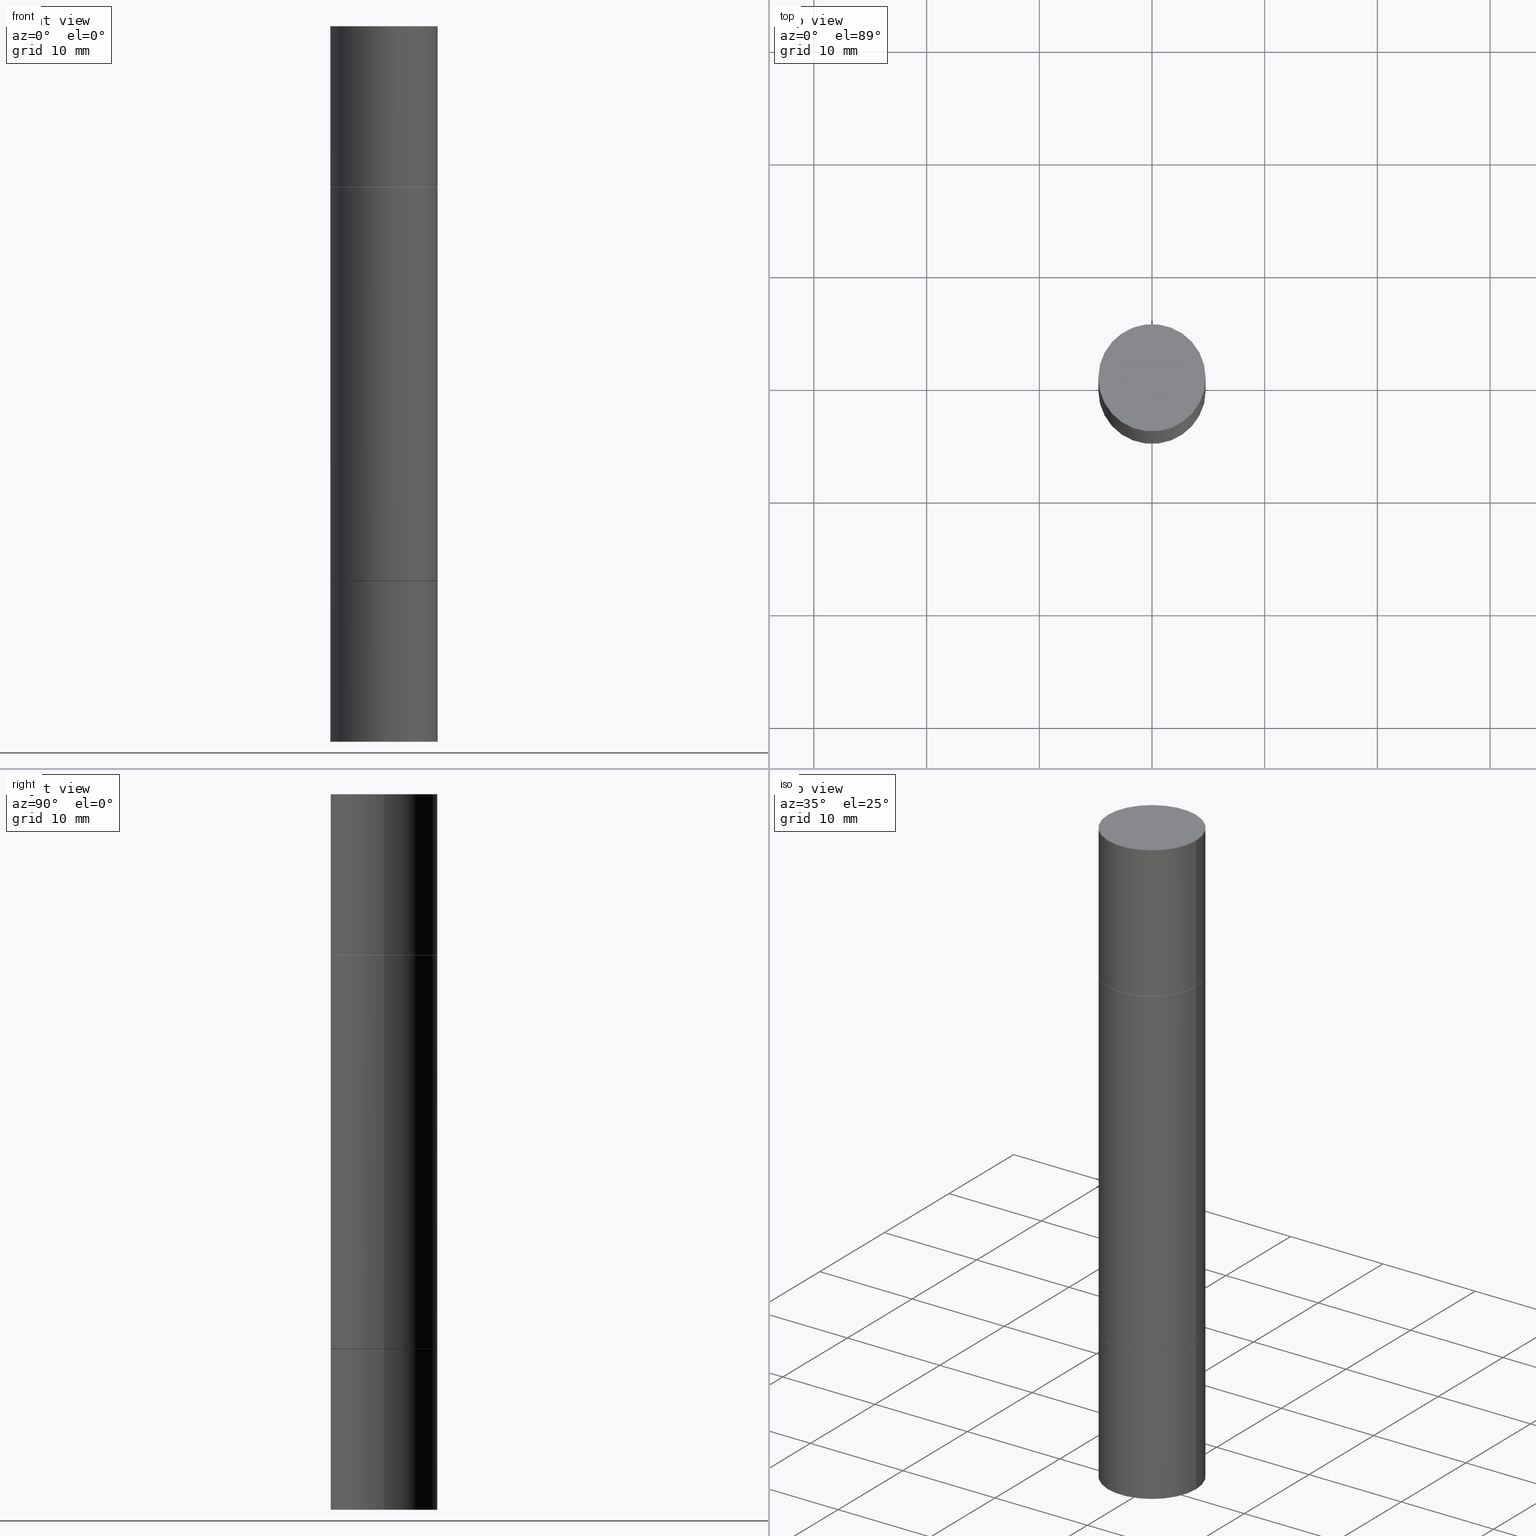
[diagram: canonical four-view strip — front | top / right | iso, engineering-drawing reading convention]
A machine part, canonical four-view strip (front | top / right | iso — engineering-drawing reading convention). The complete STEP part file that produces these views, byte-faithful:
ISO-10303-21;
HEADER;
FILE_DESCRIPTION (( 'STEP AP203' ),
    '1' );
FILE_NAME ('31187.STEP',
    '2024-03-04T15:41:26',
    ( '' ),
    ( '' ),
    'SwSTEP 2.0',
    'SolidWorks 2023',
    '' );
FILE_SCHEMA (( 'CONFIG_CONTROL_DESIGN' ));
ENDSEC;

DATA;
#1 = EDGE_LOOP ( 'NONE', ( #151, #476, #331, #534 ) ) ;
#2 = FACE_OUTER_BOUND ( 'NONE', #395, .T. ) ;
#3 = EDGE_LOOP ( 'NONE', ( #573, #161 ) ) ;
#4 = EDGE_CURVE ( 'NONE', #30, #220, #29, .T. ) ;
#5 = CARTESIAN_POINT ( 'NONE',  ( 0.1875000000000000278, -3.274041462884052574E-15, -0.5629999999999997229 ) ) ;
#6 = CIRCLE ( 'NONE', #514, 0.1875000000000000278 ) ;
#7 = DIRECTION ( 'NONE',  ( -2.445468806185136597E-29, -3.492890411551752677E-15, -1.000000000000000000 ) ) ;
#8 = EDGE_LOOP ( 'NONE', ( #203, #628, #154, #60 ) ) ;
#9 = ORIENTED_EDGE ( 'NONE', *, *, #58, .T. ) ;
#10 = DIRECTION ( 'NONE',  ( -2.445468806185136597E-29, 3.491481338843145583E-15, 1.000000000000000000 ) ) ;
#11 = ADVANCED_FACE ( 'NONE', ( #219 ), #647, .T. ) ;
#12 = ADVANCED_FACE ( 'NONE', ( #600 ), #73, .T. ) ;
#13 = ORIENTED_EDGE ( 'NONE', *, *, #96, .T. ) ;
#14 = LINE ( 'NONE', #112, #566 ) ;
#15 = VECTOR ( 'NONE', #200, 39.37007874015748143 ) ;
#16 = VERTEX_POINT ( 'NONE', #186 ) ;
#17 = AXIS2_PLACEMENT_3D ( 'NONE', #580, #583, #524 ) ;
#18 = FACE_OUTER_BOUND ( 'NONE', #418, .T. ) ;
#19 = DIRECTION ( 'NONE',  ( -2.445468806185136597E-29, 3.491481338843145583E-15, 1.000000000000000000 ) ) ;
#20 = ORIENTED_EDGE ( 'NONE', *, *, #149, .T. ) ;
#21 = CARTESIAN_POINT ( 'NONE',  ( 4.739318546386794397E-29, -6.766490834678016045E-15, -1.937999999999999945 ) ) ;
#22 = CC_DESIGN_DATE_AND_TIME_ASSIGNMENT ( #139, #339, ( #676 ) ) ;
#23 = FACE_OUTER_BOUND ( 'NONE', #480, .T. ) ;
#24 = ORIENTED_EDGE ( 'NONE', *, *, #539, .T. ) ;
#25 = DIRECTION ( 'NONE',  ( -1.000000000000000000, 6.982962677686265922E-15, -9.839502134516470631E-33 ) ) ;
#26 = DATE_AND_TIME ( #562, #388 ) ;
#27 = CARTESIAN_POINT ( 'NONE',  ( 0.1875000000000000278, -3.270548572472500038E-15, -0.5619999999999996110 ) ) ;
#28 = EDGE_CURVE ( 'NONE', #220, #373, #125, .T. ) ;
#29 = LINE ( 'NONE', #346, #627 ) ;
#30 = VERTEX_POINT ( 'NONE', #665 ) ;
#31 = DIRECTION ( 'NONE',  ( 1.000000000000000000, -6.982962677686266711E-15, 0.000000000000000000 ) ) ;
#32 = AXIS2_PLACEMENT_3D ( 'NONE', #128, #236, #493 ) ;
#33 = LOCAL_TIME ( 10, 41, 26.00000000000000000, #242 ) ;
#34 = CALENDAR_DATE ( 2024, 4, 3 ) ;
#35 = CARTESIAN_POINT ( 'NONE',  ( 6.113672015462842613E-29, 1.761340885760521790E-18, 5.463695987328526437E-16 ) ) ;
#36 = DIRECTION ( 'NONE',  ( -2.445468806185136877E-29, 3.491481338843145188E-15, 1.000000000000000000 ) ) ;
#37 = COORDINATED_UNIVERSAL_TIME_OFFSET ( 5, 0, .BEHIND. ) ;
#38 = DIRECTION ( 'NONE',  ( 1.000000000000000000, -6.982962677686266711E-15, 0.000000000000000000 ) ) ;
#39 = CARTESIAN_POINT ( 'NONE',  ( -0.1875000000000000278, 3.066025098218802702E-16, -0.5619999999999996110 ) ) ;
#40 = ADVANCED_FACE ( 'NONE', ( #23 ), #129, .T. ) ;
#41 = MANIFOLD_SOLID_BREP ( 'Body-Move/Copy2[1]', #343 ) ;
#42 = AXIS2_PLACEMENT_3D ( 'NONE', #274, #401, #608 ) ;
#43 = DIRECTION ( 'NONE',  ( 1.000000000000000000, -6.982962677686266711E-15, 0.000000000000000000 ) ) ;
#44 = AXIS2_PLACEMENT_3D ( 'NONE', #35, #381, #276 ) ;
#45 = LOCAL_TIME ( 10, 41, 26.00000000000000000, #92 ) ;
#46 = DIRECTION ( 'NONE',  ( 1.000000000000000000, -6.982962677686270655E-15, 0.000000000000000000 ) ) ;
#47 = EDGE_CURVE ( 'NONE', #232, #263, #228, .T. ) ;
#48 = DIRECTION ( 'NONE',  ( -2.445468806185136597E-29, -3.492890411551752677E-15, -1.000000000000000000 ) ) ;
#49 = FACE_OUTER_BOUND ( 'NONE', #327, .T. ) ;
#50 = AXIS2_PLACEMENT_3D ( 'NONE', #99, #424, #150 ) ;
#51 = MANIFOLD_SOLID_BREP ( 'Combine1', #172 ) ;
#52 = CYLINDRICAL_SURFACE ( 'NONE', #120, 0.1875000000000000278 ) ;
#53 = AXIS2_PLACEMENT_3D ( 'NONE', #648, #115, #590 ) ;
#54 = VERTEX_POINT ( 'NONE', #559 ) ;
#55 = MANIFOLD_SOLID_BREP ( 'Mirror1[1]', #564 ) ;
#56 = FACE_OUTER_BOUND ( 'NONE', #541, .T. ) ;
#57 = ADVANCED_FACE ( 'NONE', ( #594 ), #237, .T. ) ;
#58 = EDGE_CURVE ( 'NONE', #54, #30, #82, .T. ) ;
#59 = CARTESIAN_POINT ( 'NONE',  ( -0.1874999999999999722, -3.078008298971767937E-15, -1.936999999999999833 ) ) ;
#60 = ORIENTED_EDGE ( 'NONE', *, *, #149, .F. ) ;
#61 = CARTESIAN_POINT ( 'NONE',  ( 1.309305502066222340E-15, 0.1874999999999932554, -1.938000000000000389 ) ) ;
#62 = AXIS2_PLACEMENT_3D ( 'NONE', #504, #429, #175 ) ;
#63 = CARTESIAN_POINT ( 'NONE',  ( 4.736873077580609355E-29, -1.964735960817877172E-15, -0.5629999999999997229 ) ) ;
#64 = EDGE_CURVE ( 'NONE', #103, #114, #133, .T. ) ;
#65 = ORIENTED_EDGE ( 'NONE', *, *, #88, .F. ) ;
#66 = DIRECTION ( 'NONE',  ( -1.000000000000000000, 6.982962677686265922E-15, -9.839502134516470631E-33 ) ) ;
#67 = EDGE_LOOP ( 'NONE', ( #430, #578, #20, #383 ) ) ;
#68 = DIRECTION ( 'NONE',  ( 1.000000000000000000, -6.982962677686269077E-15, 0.000000000000000000 ) ) ;
#69 = ORIENTED_EDGE ( 'NONE', *, *, #398, .F. ) ;
#70 = ORIENTED_EDGE ( 'NONE', *, *, #501, .F. ) ;
#71 = VECTOR ( 'NONE', #377, 39.37007874015748143 ) ;
#72 = DIRECTION ( 'NONE',  ( -2.445468806185136597E-29, -3.492890411551752677E-15, -1.000000000000000000 ) ) ;
#73 = CYLINDRICAL_SURFACE ( 'NONE', #607, 0.1874999999999999167 ) ;
#74 = ORIENTED_EDGE ( 'NONE', *, *, #623, .T. ) ;
#75 = DIRECTION ( 'NONE',  ( 2.445468806185136597E-29, 3.492890411551752677E-15, 1.000000000000000000 ) ) ;
#76 = EDGE_CURVE ( 'NONE', #54, #321, #119, .T. ) ;
#77 = APPROVAL_STATUS ( 'not_yet_approved' ) ;
#78 = DIRECTION ( 'NONE',  ( -2.445468806185136597E-29, -3.492890411551752677E-15, -1.000000000000000000 ) ) ;
#79 = CARTESIAN_POINT ( 'NONE',  ( -0.1875000000000000278, -7.444121313411457895E-15, -2.499999999999999556 ) ) ;
#80 = VERTEX_POINT ( 'NONE', #288 ) ;
#81 = PERSON_AND_ORGANIZATION_ROLE ( 'design_owner' ) ;
#82 = CIRCLE ( 'NONE', #267, 0.1864999999999999714 ) ;
#83 = FACE_OUTER_BOUND ( 'NONE', #211, .T. ) ;
#84 = CARTESIAN_POINT ( 'NONE',  ( 4.739318546386794397E-29, -1.961243070406324635E-15, -0.5619999999999996110 ) ) ;
#85 = CARTESIAN_POINT ( 'NONE',  ( -0.1864999999999999714, -5.441328632485429205E-15, -1.937999999999999945 ) ) ;
#86 =( GEOMETRIC_REPRESENTATION_CONTEXT ( 3 ) GLOBAL_UNCERTAINTY_ASSIGNED_CONTEXT ( ( #387 ) ) GLOBAL_UNIT_ASSIGNED_CONTEXT ( ( #646, #605, #130 ) ) REPRESENTATION_CONTEXT ( 'NONE', 'WORKASPACE' ) );
#87 = CYLINDRICAL_SURFACE ( 'NONE', #144, 0.1874999999999999167 ) ;
#88 = EDGE_CURVE ( 'NONE', #367, #213, #223, .T. ) ;
#89 = DIRECTION ( 'NONE',  ( 2.445468806185136597E-29, 3.492890411551752677E-15, 1.000000000000000000 ) ) ;
#90 = CARTESIAN_POINT ( 'NONE',  ( 0.1875000000000000278, -8.072304855405348046E-15, -1.936999999999999833 ) ) ;
#91 = DIRECTION ( 'NONE',  ( -2.445468806185136597E-29, -3.492890411551752677E-15, -1.000000000000000000 ) ) ;
#92 = COORDINATED_UNIVERSAL_TIME_OFFSET ( 5, 0, .BEHIND. ) ;
#93 = COORDINATED_UNIVERSAL_TIME_OFFSET ( 5, 0, .BEHIND. ) ;
#94 = DIRECTION ( 'NONE',  ( -1.000000000000000000, 6.982962677686265922E-15, -4.876176775795935793E-29 ) ) ;
#95 = PRODUCT ( '31187', '31187', '', ( #561 ) ) ;
#96 = EDGE_CURVE ( 'NONE', #263, #80, #315, .T. ) ;
#97 = CIRCLE ( 'NONE', #669, 0.1864999999999999714 ) ;
#98 = FACE_OUTER_BOUND ( 'NONE', #67, .T. ) ;
#99 = CARTESIAN_POINT ( 'NONE',  ( 6.113672015462842613E-29, -8.728703347107864943E-15, -2.500000000000000000 ) ) ;
#100 = VERTEX_POINT ( 'NONE', #39 ) ;
#101 = PLANE ( 'NONE',  #289 ) ;
#102 = DIRECTION ( 'NONE',  ( 1.000000000000000000, -6.982962677686265922E-15, 0.000000000000000000 ) ) ;
#103 = VERTEX_POINT ( 'NONE', #176 ) ;
#104 = DIRECTION ( 'NONE',  ( 2.445468806185136597E-29, 3.492890411551752677E-15, 1.000000000000000000 ) ) ;
#105 = ORIENTED_EDGE ( 'NONE', *, *, #196, .T. ) ;
#106 = CARTESIAN_POINT ( 'NONE',  ( 1.309305502066222340E-15, 0.1874999999999980294, -0.5620000000000004992 ) ) ;
#107 = ORIENTED_EDGE ( 'NONE', *, *, #333, .T. ) ;
#108 = EDGE_CURVE ( 'NONE', #126, #537, #494, .T. ) ;
#109 = DIRECTION ( 'NONE',  ( -1.000000000000000000, 6.982962677686265922E-15, -4.876176775795935793E-29 ) ) ;
#110 = AXIS2_PLACEMENT_3D ( 'NONE', #626, #577, #255 ) ;
#111 = ORIENTED_EDGE ( 'NONE', *, *, #616, .F. ) ;
#112 = CARTESIAN_POINT ( 'NONE',  ( 0.1874999999999999167, -1.003977019005979665E-14, -2.499999999999999556 ) ) ;
#113 = ORIENTED_EDGE ( 'NONE', *, *, #314, .F. ) ;
#114 = VERTEX_POINT ( 'NONE', #661 ) ;
#115 = DIRECTION ( 'NONE',  ( -2.445468806185136597E-29, 3.491481338843145583E-15, 1.000000000000000000 ) ) ;
#116 = ORIENTED_EDGE ( 'NONE', *, *, #295, .F. ) ;
#117 = ORIENTED_EDGE ( 'NONE', *, *, #435, .T. ) ;
#118 = PLANE ( 'NONE',  #482 ) ;
#119 = LINE ( 'NONE', #556, #363 ) ;
#120 = AXIS2_PLACEMENT_3D ( 'NONE', #294, #198, #467 ) ;
#121 = EDGE_LOOP ( 'NONE', ( #173, #547, #13, #70 ) ) ;
#122 = CARTESIAN_POINT ( 'NONE',  ( 4.739318546386794397E-29, -1.961243070406324635E-15, -0.5619999999999996110 ) ) ;
#123 = EDGE_CURVE ( 'NONE', #225, #412, #505, .T. ) ;
#124 = CARTESIAN_POINT ( 'NONE',  ( -0.1874999999999999167, -7.444121313411459473E-15, -2.499999999999999556 ) ) ;
#125 = LINE ( 'NONE', #326, #434 ) ;
#126 = VERTEX_POINT ( 'NONE', #246 ) ;
#127 = PERSON_AND_ORGANIZATION_ROLE ( 'design_supplier' ) ;
#128 = CARTESIAN_POINT ( 'NONE',  ( 4.736873077580609355E-29, -1.964735960817877172E-15, -0.5629999999999997229 ) ) ;
#129 = PLANE ( 'NONE',  #509 ) ;
#130 =( NAMED_UNIT ( * ) SI_UNIT ( $, .STERADIAN. ) SOLID_ANGLE_UNIT ( ) );
#131 = ADVANCED_FACE ( 'NONE', ( #517 ), #147, .T. ) ;
#132 = DIRECTION ( 'NONE',  ( 1.000000000000000000, -6.982962677686265922E-15, 4.876176775795935793E-29 ) ) ;
#133 = LINE ( 'NONE', #79, #140 ) ;
#134 = ADVANCED_BREP_SHAPE_REPRESENTATION ( '31187', ( #41, #55, #253, #503, #51, #262 ), #86 ) ;
#135 = CONICAL_SURFACE ( 'NONE', #215, 0.1864999999999999714, 0.7853981633974311816 ) ;
#136 = CARTESIAN_POINT ( 'NONE',  ( 0.000000000000000000, -8.730464687993621641E-15, -2.499999999999999556 ) ) ;
#137 = DATE_AND_TIME ( #280, #357 ) ;
#138 = DIRECTION ( 'NONE',  ( -2.445468806185136597E-29, 3.491481338843145583E-15, 1.000000000000000000 ) ) ;
#139 = DATE_AND_TIME ( #34, #545 ) ;
#140 = VECTOR ( 'NONE', #495, 39.37007874015748143 ) ;
#141 = LINE ( 'NONE', #621, #15 ) ;
#142 = EDGE_CURVE ( 'NONE', #114, #443, #462, .T. ) ;
#143 = AXIS2_PLACEMENT_3D ( 'NONE', #156, #310, #574 ) ;
#144 = AXIS2_PLACEMENT_3D ( 'NONE', #483, #218, #451 ) ;
#145 = CC_DESIGN_APPROVAL ( #400, ( #654 ) ) ;
#146 = DIRECTION ( 'NONE',  ( -2.445468806185136597E-29, 3.491481338843145583E-15, 1.000000000000000000 ) ) ;
#147 = PLANE ( 'NONE',  #675 ) ;
#148 = ORIENTED_EDGE ( 'NONE', *, *, #282, .T. ) ;
#149 = EDGE_CURVE ( 'NONE', #181, #525, #141, .T. ) ;
#150 = DIRECTION ( 'NONE',  ( 1.000000000000000000, -6.982962677686266711E-15, 0.000000000000000000 ) ) ;
#151 = ORIENTED_EDGE ( 'NONE', *, *, #28, .F. ) ;
#152 = LINE ( 'NONE', #522, #319 ) ;
#153 = CIRCLE ( 'NONE', #678, 0.1875000000000000278 ) ;
#154 = ORIENTED_EDGE ( 'NONE', *, *, #616, .T. ) ;
#155 = ORIENTED_EDGE ( 'NONE', *, *, #28, .T. ) ;
#156 = CARTESIAN_POINT ( 'NONE',  ( 4.736873077580609355E-29, -1.964735960817877172E-15, -0.5629999999999997229 ) ) ;
#157 = ORIENTED_EDGE ( 'NONE', *, *, #323, .F. ) ;
#158 = ADVANCED_FACE ( 'NONE', ( #49 ), #674, .T. ) ;
#159 = DIRECTION ( 'NONE',  ( 0.000000000000000000, 1.000000000000000000, -2.913971193241881950E-15 ) ) ;
#160 = CLOSED_SHELL ( 'NONE', ( #201, #487, #374, #209 ) ) ;
#161 = ORIENTED_EDGE ( 'NONE', *, *, #314, .T. ) ;
#162 = DIRECTION ( 'NONE',  ( 1.000000000000000000, -6.982962677686266711E-15, 0.000000000000000000 ) ) ;
#163 = VECTOR ( 'NONE', #354, 39.37007874015748143 ) ;
#164 = CIRCLE ( 'NONE', #568, 0.1864999999999999714 ) ;
#165 = EDGE_LOOP ( 'NONE', ( #69, #155, #105, #258 ) ) ;
#166 = CARTESIAN_POINT ( 'NONE',  ( 0.1864999999999999714, -8.068813374066505039E-15, -1.937999999999999945 ) ) ;
#167 = ORIENTED_EDGE ( 'NONE', *, *, #435, .F. ) ;
#168 = ADVANCED_FACE ( 'NONE', ( #671 ), #513, .F. ) ;
#169 = DIRECTION ( 'NONE',  ( -2.445468806185136597E-29, 3.491481338843145583E-15, 1.000000000000000000 ) ) ;
#170 = EDGE_CURVE ( 'NONE', #16, #443, #202, .T. ) ;
#171 = DIRECTION ( 'NONE',  ( -0.7071067811865353603, 2.381258160591140710E-15, -0.7071067811865595631 ) ) ;
#172 = CLOSED_SHELL ( 'NONE', ( #486, #12, #338, #634, #519, #230, #11, #375 ) ) ;
#173 = ORIENTED_EDGE ( 'NONE', *, *, #640, .F. ) ;
#174 = DIRECTION ( 'NONE',  ( 2.438088387897959769E-29, 3.492890411551753071E-15, 1.000000000000000000 ) ) ;
#175 = DIRECTION ( 'NONE',  ( 1.000000000000000000, -6.982962677686265922E-15, 0.000000000000000000 ) ) ;
#176 = CARTESIAN_POINT ( 'NONE',  ( -0.1875000000000000278, 3.066025098218802702E-16, 5.463695987328561936E-16 ) ) ;
#177 = CIRCLE ( 'NONE', #355, 0.1875000000000000278 ) ;
#178 = CIRCLE ( 'NONE', #32, 0.1875000000000000278 ) ;
#179 = EDGE_LOOP ( 'NONE', ( #530, #523, #24, #521 ) ) ;
#180 = CARTESIAN_POINT ( 'NONE',  ( 0.1864999999999999714, -8.068813374066505039E-15, -1.937999999999999945 ) ) ;
#181 = VERTEX_POINT ( 'NONE', #247 ) ;
#182 = DIRECTION ( 'NONE',  ( -0.000000000000000000, -3.492185875197449130E-15, -1.000000000000000000 ) ) ;
#183 = ADVANCED_FACE ( 'NONE', ( #677 ), #101, .F. ) ;
#184 = APPROVAL_DATE_TIME ( #26, #400 ) ;
#185 = CARTESIAN_POINT ( 'NONE',  ( 4.739318546386794397E-29, -1.961243070406324635E-15, -0.5619999999999996110 ) ) ;
#186 = CARTESIAN_POINT ( 'NONE',  ( 0.1875000000000000278, -1.307544161180414563E-15, 5.463695987328526437E-16 ) ) ;
#187 =( LENGTH_UNIT ( ) NAMED_UNIT ( * ) SI_UNIT ( $, .METRE. ) );
#188 = APPROVAL_DATE_TIME ( #667, #579 ) ;
#189 = DIRECTION ( 'NONE',  ( 1.000000000000000000, -6.982962677686269077E-15, 0.000000000000000000 ) ) ;
#190 = ORIENTED_EDGE ( 'NONE', *, *, #243, .T. ) ;
#191 = AXIS2_PLACEMENT_3D ( 'NONE', #136, #91, #46 ) ;
#192 = PERSON_AND_ORGANIZATION ( #447, #670 ) ;
#193 = CARTESIAN_POINT ( 'NONE',  ( 0.1875000000000000278, -8.075796336744191053E-15, -1.937999999999999945 ) ) ;
#194 = SECURITY_CLASSIFICATION_LEVEL ( 'unclassified' ) ;
#195 = CARTESIAN_POINT ( 'NONE',  ( 0.000000000000000000, -8.730464687993621641E-15, -2.499999999999999556 ) ) ;
#196 = EDGE_CURVE ( 'NONE', #373, #638, #417, .T. ) ;
#197 = AXIS2_PLACEMENT_3D ( 'NONE', #293, #283, #449 ) ;
#198 = DIRECTION ( 'NONE',  ( -2.445468806185136597E-29, -3.492890411551752677E-15, -1.000000000000000000 ) ) ;
#199 = AXIS2_PLACEMENT_3D ( 'NONE', #538, #169, #132 ) ;
#200 = DIRECTION ( 'NONE',  ( -2.445468806185136877E-29, -3.492890411551753071E-15, -1.000000000000000000 ) ) ;
#201 = ADVANCED_FACE ( 'NONE', ( #673 ), #572, .T. ) ;
#202 = LINE ( 'NONE', #252, #163 ) ;
#203 = ORIENTED_EDGE ( 'NONE', *, *, #260, .F. ) ;
#204 = VECTOR ( 'NONE', #335, 39.37007874015748854 ) ;
#205 = ORIENTED_EDGE ( 'NONE', *, *, #76, .T. ) ;
#206 = AXIS2_PLACEMENT_3D ( 'NONE', #618, #138, #352 ) ;
#207 = CIRCLE ( 'NONE', #630, 0.1875000000000000278 ) ;
#208 = CARTESIAN_POINT ( 'NONE',  ( 0.1875000000000000278, -1.003800884917403995E-14, -2.500000000000000000 ) ) ;
#209 = ADVANCED_FACE ( 'NONE', ( #98 ), #52, .T. ) ;
#210 = DIRECTION ( 'NONE',  ( 1.000000000000000000, -6.982962677686270655E-15, 0.000000000000000000 ) ) ;
#211 = EDGE_LOOP ( 'NONE', ( #479, #481 ) ) ;
#212 = CYLINDRICAL_SURFACE ( 'NONE', #199, 0.1875000000000000278 ) ;
#213 = VERTEX_POINT ( 'NONE', #193 ) ;
#214 = CARTESIAN_POINT ( 'NONE',  ( 4.739318546386794397E-29, -6.766490834678016045E-15, -1.937999999999999945 ) ) ;
#215 = AXIS2_PLACEMENT_3D ( 'NONE', #603, #78, #68 ) ;
#216 = CC_DESIGN_APPROVAL ( #554, ( #676 ) ) ;
#217 = ORIENTED_EDGE ( 'NONE', *, *, #602, .F. ) ;
#218 = DIRECTION ( 'NONE',  ( -2.445468806185136597E-29, -3.492890411551752677E-15, -1.000000000000000000 ) ) ;
#219 = FACE_OUTER_BOUND ( 'NONE', #179, .T. ) ;
#220 = VERTEX_POINT ( 'NONE', #404 ) ;
#221 = APPROVAL_ROLE ( '' ) ;
#222 = CARTESIAN_POINT ( 'NONE',  ( -0.1875000000000000278, -6.415329461342752645E-15, -1.937999999999999945 ) ) ;
#223 = LINE ( 'NONE', #277, #284 ) ;
#224 = CLOSED_SHELL ( 'NONE', ( #248, #40, #650, #158 ) ) ;
#225 = VERTEX_POINT ( 'NONE', #680 ) ;
#226 = LENGTH_MEASURE_WITH_UNIT ( LENGTH_MEASURE( 0.02539999999999999897 ), #187 );
#227 = DIRECTION ( 'NONE',  ( 1.000000000000000000, -6.982962677686269077E-15, 0.000000000000000000 ) ) ;
#228 = LINE ( 'NONE', #393, #204 ) ;
#229 = AXIS2_PLACEMENT_3D ( 'NONE', #320, #635, #102 ) ;
#230 = ADVANCED_FACE ( 'NONE', ( #241 ), #403, .T. ) ;
#231 = VECTOR ( 'NONE', #348, 39.37007874015748854 ) ;
#232 = VERTEX_POINT ( 'NONE', #615 ) ;
#233 = DIRECTION ( 'NONE',  ( -2.438088387897959769E-29, -3.492890411551753071E-15, -1.000000000000000000 ) ) ;
#234 = CC_DESIGN_SECURITY_CLASSIFICATION ( #654, ( #632 ) ) ;
#235 = PERSON_AND_ORGANIZATION ( #447, #670 ) ;
#236 = DIRECTION ( 'NONE',  ( 2.445468806185136597E-29, 3.492890411551752677E-15, 1.000000000000000000 ) ) ;
#237 = CYLINDRICAL_SURFACE ( 'NONE', #619, 0.1875000000000000278 ) ;
#238 = DIRECTION ( 'NONE',  ( 1.000000000000000000, -6.982962677686266711E-15, 0.000000000000000000 ) ) ;
#239 = CARTESIAN_POINT ( 'NONE',  ( -0.1874999999999999167, -1.878200442603741470E-15, -1.249999999999999778 ) ) ;
#240 = DIRECTION ( 'NONE',  ( 2.438088387897959769E-29, 3.492890411551753071E-15, 1.000000000000000000 ) ) ;
#241 = FACE_OUTER_BOUND ( 'NONE', #1, .T. ) ;
#242 = COORDINATED_UNIVERSAL_TIME_OFFSET ( 5, 0, .BEHIND. ) ;
#243 = EDGE_CURVE ( 'NONE', #225, #367, #609, .T. ) ;
#244 = CC_DESIGN_PERSON_AND_ORGANIZATION_ASSIGNMENT ( #402, #127, ( #632 ) ) ;
#245 = CARTESIAN_POINT ( 'NONE',  ( 4.739318546386794397E-29, -1.961243070406324635E-15, -0.5619999999999996110 ) ) ;
#246 = CARTESIAN_POINT ( 'NONE',  ( -0.1864999999999999714, -5.436030178137207592E-15, -1.937999999999999945 ) ) ;
#247 = CARTESIAN_POINT ( 'NONE',  ( 0.1875000000000000278, -1.307544161180414563E-15, 5.463695987328526437E-16 ) ) ;
#248 = ADVANCED_FACE ( 'NONE', ( #359 ), #563, .T. ) ;
#249 = EDGE_CURVE ( 'NONE', #367, #225, #542, .T. ) ;
#250 = ORIENTED_EDGE ( 'NONE', *, *, #413, .F. ) ;
#251 = AXIS2_PLACEMENT_3D ( 'NONE', #516, #48, #569 ) ;
#252 = CARTESIAN_POINT ( 'NONE',  ( 0.1875000000000000278, -1.003977019005979665E-14, -2.499999999999999556 ) ) ;
#253 = MANIFOLD_SOLID_BREP ( 'Mirror1[3]', #224 ) ;
#254 = ORIENTED_EDGE ( 'NONE', *, *, #295, .T. ) ;
#255 = DIRECTION ( 'NONE',  ( 1.000000000000000000, -6.982962677686265922E-15, 4.876176775795935793E-29 ) ) ;
#256 = EDGE_LOOP ( 'NONE', ( #9, #657 ) ) ;
#257 = FACE_OUTER_BOUND ( 'NONE', #3, .T. ) ;
#258 = ORIENTED_EDGE ( 'NONE', *, *, #368, .F. ) ;
#259 = CONICAL_SURFACE ( 'NONE', #419, 0.1864999999999999714, 0.7853981633974311816 ) ;
#260 = EDGE_CURVE ( 'NONE', #472, #181, #308, .T. ) ;
#261 = CARTESIAN_POINT ( 'NONE',  ( 0.000000000000000000, -8.730464687993621641E-15, -2.499999999999999556 ) ) ;
#262 = AXIS2_PLACEMENT_3D ( 'NONE', #552, #612, #453 ) ;
#263 = VERTEX_POINT ( 'NONE', #370 ) ;
#264 = DIRECTION ( 'NONE',  ( 1.000000000000000000, -6.982962677686266711E-15, 0.000000000000000000 ) ) ;
#265 = ORIENTED_EDGE ( 'NONE', *, *, #526, .T. ) ;
#266 = PLANE ( 'NONE',  #110 ) ;
#267 = AXIS2_PLACEMENT_3D ( 'NONE', #84, #89, #550 ) ;
#268 = ORIENTED_EDGE ( 'NONE', *, *, #515, .T. ) ;
#269 = EDGE_CURVE ( 'NONE', #638, #373, #177, .T. ) ;
#270 = EDGE_LOOP ( 'NONE', ( #305, #431 ) ) ;
#271 = CARTESIAN_POINT ( 'NONE',  ( 0.1864999999999999714, -3.263565609794813629E-15, -0.5619999999999996110 ) ) ;
#272 = AXIS2_PLACEMENT_3D ( 'NONE', #195, #299, #518 ) ;
#273 = CIRCLE ( 'NONE', #441, 0.1874999999999999167 ) ;
#274 = CARTESIAN_POINT ( 'NONE',  ( 4.739318546386794397E-29, -6.766490834678016045E-15, -1.937999999999999945 ) ) ;
#275 = ORIENTED_EDGE ( 'NONE', *, *, #640, .T. ) ;
#276 = DIRECTION ( 'NONE',  ( 1.000000000000000000, -6.982962677686265922E-15, 0.000000000000000000 ) ) ;
#277 = CARTESIAN_POINT ( 'NONE',  ( 0.1875000000000000278, -1.309305502066175008E-15, 9.142831454617381013E-30 ) ) ;
#278 = ORIENTED_EDGE ( 'NONE', *, *, #450, .T. ) ;
#279 = FACE_OUTER_BOUND ( 'NONE', #256, .T. ) ;
#280 = CALENDAR_DATE ( 2024, 4, 3 ) ;
#281 = CARTESIAN_POINT ( 'NONE',  ( 4.739318546386794397E-29, -1.961243070406324635E-15, -0.5619999999999996110 ) ) ;
#282 = EDGE_CURVE ( 'NONE', #80, #465, #14, .T. ) ;
#283 = DIRECTION ( 'NONE',  ( -2.445468806185136597E-29, 3.491481338843145583E-15, 1.000000000000000000 ) ) ;
#284 = VECTOR ( 'NONE', #36, 39.37007874015748143 ) ;
#285 = ORIENTED_EDGE ( 'NONE', *, *, #249, .T. ) ;
#286 = APPLICATION_PROTOCOL_DEFINITION ( 'international standard', 'config_control_design', 1994, #555 ) ;
#287 = DIRECTION ( 'NONE',  ( -2.445468806185136597E-29, 3.491481338843145583E-15, 1.000000000000000000 ) ) ;
#288 = CARTESIAN_POINT ( 'NONE',  ( 0.1875000000000000278, -3.274041462884052574E-15, -0.5629999999999997229 ) ) ;
#289 = AXIS2_PLACEMENT_3D ( 'NONE', #411, #455, #567 ) ;
#290 = AXIS2_PLACEMENT_3D ( 'NONE', #122, #233, #444 ) ;
#291 = DIRECTION ( 'NONE',  ( 0.000000000000000000, 1.000000000000000000, -2.913971193241881950E-15 ) ) ;
#292 = DIRECTION ( 'NONE',  ( 1.000000000000000000, -6.982962677686269077E-15, 0.000000000000000000 ) ) ;
#293 = CARTESIAN_POINT ( 'NONE',  ( 4.739318546386794397E-29, -6.766490834678016045E-15, -1.937999999999999945 ) ) ;
#294 = CARTESIAN_POINT ( 'NONE',  ( 0.000000000000000000, -8.730464687993621641E-15, -2.499999999999999556 ) ) ;
#295 = EDGE_CURVE ( 'NONE', #80, #263, #439, .T. ) ;
#296 = CALENDAR_DATE ( 2024, 4, 3 ) ;
#297 = PERSON_AND_ORGANIZATION ( #447, #670 ) ;
#298 = CC_DESIGN_DATE_AND_TIME_ASSIGNMENT ( #137, #617, ( #654 ) ) ;
#299 = DIRECTION ( 'NONE',  ( -2.445468806185136597E-29, -3.492890411551752677E-15, -1.000000000000000000 ) ) ;
#300 = AXIS2_PLACEMENT_3D ( 'NONE', #261, #7, #210 ) ;
#301 = APPROVAL_PERSON_ORGANIZATION ( #235, #579, #445 ) ;
#302 = DIRECTION ( 'NONE',  ( 1.000000000000000000, -6.982962677686266711E-15, 0.000000000000000000 ) ) ;
#303 = CC_DESIGN_PERSON_AND_ORGANIZATION_ASSIGNMENT ( #351, #438, ( #676 ) ) ;
#304 = DIRECTION ( 'NONE',  ( 2.445468806185136597E-29, 3.492890411551752677E-15, 1.000000000000000000 ) ) ;
#305 = ORIENTED_EDGE ( 'NONE', *, *, #249, .F. ) ;
#306 = CARTESIAN_POINT ( 'NONE',  ( 0.000000000000000000, -8.730464687993621641E-15, -2.499999999999999556 ) ) ;
#307 = ORIENTED_EDGE ( 'NONE', *, *, #123, .F. ) ;
#308 = CIRCLE ( 'NONE', #597, 0.1875000000000000278 ) ;
#309 = AXIS2_PLACEMENT_3D ( 'NONE', #61, #316, #109 ) ;
#310 = DIRECTION ( 'NONE',  ( 2.445468806185136597E-29, 3.492890411551752677E-15, 1.000000000000000000 ) ) ;
#311 = ORIENTED_EDGE ( 'NONE', *, *, #501, .T. ) ;
#312 = DIRECTION ( 'NONE',  ( -2.445468806185136877E-29, -3.492890411551753071E-15, -1.000000000000000000 ) ) ;
#313 = ORIENTED_EDGE ( 'NONE', *, *, #450, .F. ) ;
#314 = EDGE_CURVE ( 'NONE', #412, #213, #585, .T. ) ;
#315 = CIRCLE ( 'NONE', #406, 0.1875000000000000278 ) ;
#316 = DIRECTION ( 'NONE',  ( 2.438088387897960049E-29, -3.491481338843145188E-15, -1.000000000000000000 ) ) ;
#317 = ORIENTED_EDGE ( 'NONE', *, *, #614, .T. ) ;
#318 = AXIS2_PLACEMENT_3D ( 'NONE', #415, #469, #159 ) ;
#319 = VECTOR ( 'NONE', #312, 39.37007874015748143 ) ;
#320 = CARTESIAN_POINT ( 'NONE',  ( 6.113672015462842613E-29, 1.761340885760521790E-18, 5.463695987328526437E-16 ) ) ;
#321 = VERTEX_POINT ( 'NONE', #5 ) ;
#322 = DIRECTION ( 'NONE',  ( 1.000000000000000000, -6.982962677686266711E-15, 0.000000000000000000 ) ) ;
#323 = EDGE_CURVE ( 'NONE', #103, #16, #531, .T. ) ;
#324 = ORIENTED_EDGE ( 'NONE', *, *, #64, .F. ) ;
#325 = FACE_OUTER_BOUND ( 'NONE', #589, .T. ) ;
#326 = CARTESIAN_POINT ( 'NONE',  ( -0.1874999999999999167, -7.444121313411459473E-15, -2.499999999999999556 ) ) ;
#327 = EDGE_LOOP ( 'NONE', ( #324, #490, #380, #117 ) ) ;
#328 = DIRECTION ( 'NONE',  ( 0.7071067811865353603, -7.407546758114202791E-15, -0.7071067811865595631 ) ) ;
#329 = CIRCLE ( 'NONE', #44, 0.1875000000000000278 ) ;
#330 = DIRECTION ( 'NONE',  ( 0.7071067811865353603, -7.407546758114202791E-15, -0.7071067811865595631 ) ) ;
#331 = ORIENTED_EDGE ( 'NONE', *, *, #368, .T. ) ;
#332 = LINE ( 'NONE', #85, #231 ) ;
#333 = EDGE_CURVE ( 'NONE', #576, #465, #620, .T. ) ;
#334 = CARTESIAN_POINT ( 'NONE',  ( 4.739318546386794397E-29, -1.961243070406324635E-15, -0.5619999999999996110 ) ) ;
#335 = DIRECTION ( 'NONE',  ( -0.7071067811865353603, 2.381258160591140710E-15, -0.7071067811865595631 ) ) ;
#336 = ORIENTED_EDGE ( 'NONE', *, *, #64, .T. ) ;
#337 = DIRECTION ( 'NONE',  ( 2.445468806185136597E-29, 3.492890411551752677E-15, 1.000000000000000000 ) ) ;
#338 = ADVANCED_FACE ( 'NONE', ( #588 ), #500, .T. ) ;
#339 = DATE_TIME_ROLE ( 'creation_date' ) ;
#340 = CARTESIAN_POINT ( 'NONE',  ( 4.739318546386794397E-29, -1.961243070406324635E-15, -0.5619999999999996110 ) ) ;
#341 = DESIGN_CONTEXT ( 'detailed design', #555, 'design' ) ;
#342 = ORIENTED_EDGE ( 'NONE', *, *, #142, .F. ) ;
#343 = CLOSED_SHELL ( 'NONE', ( #405, #131, #391, #57 ) ) ;
#344 = CARTESIAN_POINT ( 'NONE',  ( 3.056836007731420185E-29, -4.364351673553931682E-15, -1.249999999999999778 ) ) ;
#345 = CARTESIAN_POINT ( 'NONE',  ( 0.1864999999999999714, -3.263565609794813629E-15, -0.5619999999999996110 ) ) ;
#346 = CARTESIAN_POINT ( 'NONE',  ( -0.1864999999999999714, -6.817601938219341781E-16, -0.5619999999999996110 ) ) ;
#347 = AXIS2_PLACEMENT_3D ( 'NONE', #281, #488, #593 ) ;
#348 = DIRECTION ( 'NONE',  ( -0.7071067811865353603, 7.493145998870309984E-15, 0.7071067811865595631 ) ) ;
#349 = DIRECTION ( 'NONE',  ( 2.438088387897960049E-29, -3.491481338843145188E-15, -1.000000000000000000 ) ) ;
#350 = PRODUCT_RELATED_PRODUCT_CATEGORY ( 'detail', '', ( #95 ) ) ;
#351 = PERSON_AND_ORGANIZATION ( #447, #670 ) ;
#352 = DIRECTION ( 'NONE',  ( 1.000000000000000000, -6.982962677686266711E-15, 0.000000000000000000 ) ) ;
#353 = PERSON_AND_ORGANIZATION ( #447, #670 ) ;
#354 = DIRECTION ( 'NONE',  ( -2.445468806185136877E-29, -3.492890411551753071E-15, -1.000000000000000000 ) ) ;
#355 = AXIS2_PLACEMENT_3D ( 'NONE', #637, #420, #162 ) ;
#356 = AXIS2_PLACEMENT_3D ( 'NONE', #491, #75, #238 ) ;
#357 = LOCAL_TIME ( 10, 41, 26.00000000000000000, #613 ) ;
#358 = EDGE_CURVE ( 'NONE', #472, #100, #474, .T. ) ;
#359 = FACE_OUTER_BOUND ( 'NONE', #551, .T. ) ;
#360 = EDGE_LOOP ( 'NONE', ( #437, #625, #468, #595 ) ) ;
#361 = CARTESIAN_POINT ( 'NONE',  ( 4.736873077580609355E-29, -6.762999353339172249E-15, -1.936999999999999833 ) ) ;
#362 = ORIENTED_EDGE ( 'NONE', *, *, #170, .F. ) ;
#363 = VECTOR ( 'NONE', #330, 39.37007874015748854 ) ;
#364 = DIRECTION ( 'NONE',  ( 1.000000000000000000, -6.982962677686265922E-15, 0.000000000000000000 ) ) ;
#365 = AXIS2_PLACEMENT_3D ( 'NONE', #361, #146, #409 ) ;
#366 = FACE_OUTER_BOUND ( 'NONE', #645, .T. ) ;
#367 = VERTEX_POINT ( 'NONE', #208 ) ;
#368 = EDGE_CURVE ( 'NONE', #321, #638, #152, .T. ) ;
#369 = ORIENTED_EDGE ( 'NONE', *, *, #413, .T. ) ;
#370 = CARTESIAN_POINT ( 'NONE',  ( -0.1875000000000000278, -6.783925862357143136E-16, -0.5629999999999997229 ) ) ;
#371 = ORIENTED_EDGE ( 'NONE', *, *, #142, .T. ) ;
#372 = DIRECTION ( 'NONE',  ( 2.438088387897959769E-29, 3.492890411551753071E-15, 1.000000000000000000 ) ) ;
#373 = VERTEX_POINT ( 'NONE', #59 ) ;
#374 = ADVANCED_FACE ( 'NONE', ( #56 ), #535, .F. ) ;
#375 = ADVANCED_FACE ( 'NONE', ( #366 ), #266, .F. ) ;
#376 = AXIS2_PLACEMENT_3D ( 'NONE', #662, #174, #25 ) ;
#377 = DIRECTION ( 'NONE',  ( -2.445468806185136877E-29, -3.492890411551753071E-15, -1.000000000000000000 ) ) ;
#378 = EDGE_LOOP ( 'NONE', ( #278, #275 ) ) ;
#379 = DIRECTION ( 'NONE',  ( 2.445468806185136597E-29, 3.492890411551752677E-15, 1.000000000000000000 ) ) ;
#380 = ORIENTED_EDGE ( 'NONE', *, *, #170, .T. ) ;
#381 = DIRECTION ( 'NONE',  ( 2.445468806185136597E-29, 3.492890411551752677E-15, 1.000000000000000000 ) ) ;
#382 = CARTESIAN_POINT ( 'NONE',  ( 0.000000000000000000, -8.730464687993621641E-15, -2.499999999999999556 ) ) ;
#383 = ORIENTED_EDGE ( 'NONE', *, *, #602, .T. ) ;
#384 = FACE_OUTER_BOUND ( 'NONE', #428, .T. ) ;
#385 = DIRECTION ( 'NONE',  ( 2.438088387897959769E-29, 3.492890411551753071E-15, 1.000000000000000000 ) ) ;
#386 = VECTOR ( 'NONE', #557, 39.37007874015748854 ) ;
#387 = UNCERTAINTY_MEASURE_WITH_UNIT (LENGTH_MEASURE( 1.000000000000000082E-05 ), #646, 'distance_accuracy_value', 'NONE');
#388 = LOCAL_TIME ( 10, 41, 26.00000000000000000, #37 ) ;
#389 = ORIENTED_EDGE ( 'NONE', *, *, #58, .F. ) ;
#390 = EDGE_LOOP ( 'NONE', ( #592, #389, #205, #268 ) ) ;
#391 = ADVANCED_FACE ( 'NONE', ( #257 ), #471, .F. ) ;
#392 = LINE ( 'NONE', #166, #386 ) ;
#393 = CARTESIAN_POINT ( 'NONE',  ( -0.1864999999999999714, -6.817601938219341781E-16, -0.5619999999999996110 ) ) ;
#394 = CARTESIAN_POINT ( 'NONE',  ( 0.1875000000000000278, -3.270548572472500038E-15, -0.5619999999999996110 ) ) ;
#395 = EDGE_LOOP ( 'NONE', ( #586, #369, #536, #631 ) ) ;
#396 = ADVANCED_FACE ( 'NONE', ( #2 ), #528, .T. ) ;
#397 = APPROVAL_ROLE ( '' ) ;
#398 = EDGE_CURVE ( 'NONE', #220, #321, #153, .T. ) ;
#399 = FACE_OUTER_BOUND ( 'NONE', #121, .T. ) ;
#400 = APPROVAL ( #77, 'UNSPECIFIED' ) ;
#401 = DIRECTION ( 'NONE',  ( -2.445468806185136597E-29, 3.491481338843145583E-15, 1.000000000000000000 ) ) ;
#402 = PERSON_AND_ORGANIZATION ( #447, #670 ) ;
#403 = CYLINDRICAL_SURFACE ( 'NONE', #191, 0.1874999999999999167 ) ;
#404 = CARTESIAN_POINT ( 'NONE',  ( -0.1875000000000000278, -6.783925862357143136E-16, -0.5629999999999997229 ) ) ;
#405 = ADVANCED_FACE ( 'NONE', ( #477 ), #212, .T. ) ;
#406 = AXIS2_PLACEMENT_3D ( 'NONE', #436, #502, #649 ) ;
#407 = CARTESIAN_POINT ( 'NONE',  ( 0.000000000000000000, 0.000000000000000000, -1.249999999999999778 ) ) ;
#408 = CIRCLE ( 'NONE', #575, 0.1864999999999999714 ) ;
#409 = DIRECTION ( 'NONE',  ( 1.000000000000000000, -6.982962677686266711E-15, 0.000000000000000000 ) ) ;
#410 = ORIENTED_EDGE ( 'NONE', *, *, #269, .F. ) ;
#411 = CARTESIAN_POINT ( 'NONE',  ( 4.739318546386794397E-29, -1.961243070406324635E-15, -0.5619999999999996110 ) ) ;
#412 = VERTEX_POINT ( 'NONE', #222 ) ;
#413 = EDGE_CURVE ( 'NONE', #263, #576, #643, .T. ) ;
#414 = EDGE_CURVE ( 'NONE', #181, #472, #543, .T. ) ;
#415 = CARTESIAN_POINT ( 'NONE',  ( 3.056836007731420185E-29, -4.364351673553931682E-15, -1.249999999999999778 ) ) ;
#416 = ORIENTED_EDGE ( 'NONE', *, *, #539, .F. ) ;
#417 = CIRCLE ( 'NONE', #365, 0.1875000000000000278 ) ;
#418 = EDGE_LOOP ( 'NONE', ( #601, #313, #311, #254 ) ) ;
#419 = AXIS2_PLACEMENT_3D ( 'NONE', #610, #664, #189 ) ;
#420 = DIRECTION ( 'NONE',  ( -2.445468806185136597E-29, 3.491481338843145583E-15, 1.000000000000000000 ) ) ;
#421 = DIRECTION ( 'NONE',  ( 2.445468806185136597E-29, 3.492890411551752677E-15, 1.000000000000000000 ) ) ;
#422 = ORIENTED_EDGE ( 'NONE', *, *, #527, .T. ) ;
#423 = CC_DESIGN_PERSON_AND_ORGANIZATION_ASSIGNMENT ( #506, #81, ( #95 ) ) ;
#424 = DIRECTION ( 'NONE',  ( -2.445468806185136597E-29, 3.491481338843145583E-15, 1.000000000000000000 ) ) ;
#425 = ORIENTED_EDGE ( 'NONE', *, *, #108, .F. ) ;
#426 = CARTESIAN_POINT ( 'NONE',  ( 0.1874999999999999167, -4.473849319252078646E-15, -1.249999999999999778 ) ) ;
#427 = APPROVAL_PERSON_ORGANIZATION ( #297, #554, #221 ) ;
#428 = EDGE_LOOP ( 'NONE', ( #167, #342 ) ) ;
#429 = DIRECTION ( 'NONE',  ( 2.445468806185136597E-29, 3.492890411551752677E-15, 1.000000000000000000 ) ) ;
#430 = ORIENTED_EDGE ( 'NONE', *, *, #358, .F. ) ;
#431 = ORIENTED_EDGE ( 'NONE', *, *, #243, .F. ) ;
#432 = DIRECTION ( 'NONE',  ( 1.000000000000000000, -6.982962677686269077E-15, 0.000000000000000000 ) ) ;
#433 = DIRECTION ( 'NONE',  ( 1.000000000000000000, -6.982962677686266711E-15, 0.000000000000000000 ) ) ;
#434 = VECTOR ( 'NONE', #452, 39.37007874015748143 ) ;
#435 = EDGE_CURVE ( 'NONE', #443, #114, #6, .T. ) ;
#436 = CARTESIAN_POINT ( 'NONE',  ( 4.736873077580609355E-29, -1.964735960817877172E-15, -0.5629999999999997229 ) ) ;
#437 = ORIENTED_EDGE ( 'NONE', *, *, #565, .F. ) ;
#438 = PERSON_AND_ORGANIZATION_ROLE ( 'creator' ) ;
#439 = CIRCLE ( 'NONE', #143, 0.1875000000000000278 ) ;
#440 = DIRECTION ( 'NONE',  ( -2.445468806185136597E-29, 3.491481338843145583E-15, 1.000000000000000000 ) ) ;
#441 = AXIS2_PLACEMENT_3D ( 'NONE', #344, #182, #291 ) ;
#442 = ORIENTED_EDGE ( 'NONE', *, *, #475, .F. ) ;
#443 = VERTEX_POINT ( 'NONE', #27 ) ;
#444 = DIRECTION ( 'NONE',  ( 1.000000000000000000, -6.982962677686265922E-15, 9.839502134516470631E-33 ) ) ;
#445 = APPROVAL_ROLE ( '' ) ;
#446 = DIRECTION ( 'NONE',  ( -2.445468806185136877E-29, -3.492890411551753071E-15, -1.000000000000000000 ) ) ;
#447 = PERSON ( 'UNSPECIFIED', 'UNSPECIFIED', 'UNSPECIFIED', ('UNSPECIFIED'), ('UNSPECIFIED'), ('UNSPECIFIED') ) ;
#448 = DIMENSIONAL_EXPONENTS ( 1.000000000000000000, 0.000000000000000000, 0.000000000000000000, 0.000000000000000000, 0.000000000000000000, 0.000000000000000000, 0.000000000000000000 ) ;
#449 = DIRECTION ( 'NONE',  ( 1.000000000000000000, -6.982962677686269077E-15, 0.000000000000000000 ) ) ;
#450 = EDGE_CURVE ( 'NONE', #570, #232, #464, .T. ) ;
#451 = DIRECTION ( 'NONE',  ( 1.000000000000000000, -6.982962677686270655E-15, 0.000000000000000000 ) ) ;
#452 = DIRECTION ( 'NONE',  ( -2.445468806185136877E-29, -3.492890411551753071E-15, -1.000000000000000000 ) ) ;
#453 = DIRECTION ( 'NONE',  ( 1.000000000000000000, 0.000000000000000000, 0.000000000000000000 ) ) ;
#454 = APPROVAL_DATE_TIME ( #508, #554 ) ;
#455 = DIRECTION ( 'NONE',  ( -2.438088387897959769E-29, -3.492890411551753071E-15, -1.000000000000000000 ) ) ;
#456 = AXIS2_PLACEMENT_3D ( 'NONE', #106, #372, #66 ) ;
#457 = PERSON_AND_ORGANIZATION_ROLE ( 'creator' ) ;
#458 = CC_DESIGN_PERSON_AND_ORGANIZATION_ASSIGNMENT ( #192, #457, ( #632 ) ) ;
#459 = DIRECTION ( 'NONE',  ( 0.000000000000000000, 1.000000000000000000, -3.492185875197449524E-15 ) ) ;
#460 = DIRECTION ( 'NONE',  ( -2.445468806185136597E-29, -3.492890411551752677E-15, -1.000000000000000000 ) ) ;
#461 = ADVANCED_FACE ( 'NONE', ( #18 ), #135, .T. ) ;
#462 = CIRCLE ( 'NONE', #529, 0.1875000000000000278 ) ;
#463 = DIRECTION ( 'NONE',  ( -2.445468806185136877E-29, 3.491481338843145188E-15, 1.000000000000000000 ) ) ;
#464 = CIRCLE ( 'NONE', #347, 0.1864999999999999714 ) ;
#465 = VERTEX_POINT ( 'NONE', #426 ) ;
#466 = CC_DESIGN_APPROVAL ( #579, ( #632 ) ) ;
#467 = DIRECTION ( 'NONE',  ( 1.000000000000000000, -6.982962677686266711E-15, 0.000000000000000000 ) ) ;
#468 = ORIENTED_EDGE ( 'NONE', *, *, #398, .T. ) ;
#469 = DIRECTION ( 'NONE',  ( -0.000000000000000000, -3.492185875197449130E-15, -1.000000000000000000 ) ) ;
#470 = ORIENTED_EDGE ( 'NONE', *, *, #527, .F. ) ;
#471 = PLANE ( 'NONE',  #309 ) ;
#472 = VERTEX_POINT ( 'NONE', #499 ) ;
#473 = CONICAL_SURFACE ( 'NONE', #53, 0.1864999999999999714, 0.7853981633974311816 ) ;
#474 = LINE ( 'NONE', #629, #71 ) ;
#475 = EDGE_CURVE ( 'NONE', #213, #412, #207, .T. ) ;
#476 = ORIENTED_EDGE ( 'NONE', *, *, #515, .F. ) ;
#477 = FACE_OUTER_BOUND ( 'NONE', #591, .T. ) ;
#478 = EDGE_LOOP ( 'NONE', ( #307, #190, #636, #113 ) ) ;
#479 = ORIENTED_EDGE ( 'NONE', *, *, #414, .T. ) ;
#480 = EDGE_LOOP ( 'NONE', ( #265, #485 ) ) ;
#481 = ORIENTED_EDGE ( 'NONE', *, *, #260, .T. ) ;
#482 = AXIS2_PLACEMENT_3D ( 'NONE', #549, #385, #656 ) ;
#483 = CARTESIAN_POINT ( 'NONE',  ( 0.000000000000000000, -8.730464687993621641E-15, -2.499999999999999556 ) ) ;
#484 = DIRECTION ( 'NONE',  ( -2.445468806185136597E-29, -3.492890411551752677E-15, -1.000000000000000000 ) ) ;
#485 = ORIENTED_EDGE ( 'NONE', *, *, #323, .T. ) ;
#486 = ADVANCED_FACE ( 'NONE', ( #641 ), #473, .T. ) ;
#487 = ADVANCED_FACE ( 'NONE', ( #83 ), #118, .T. ) ;
#488 = DIRECTION ( 'NONE',  ( 2.445468806185136597E-29, 3.492890411551752677E-15, 1.000000000000000000 ) ) ;
#489 = CARTESIAN_POINT ( 'NONE',  ( 0.000000000000000000, 0.000000000000000000, 0.000000000000000000 ) ) ;
#490 = ORIENTED_EDGE ( 'NONE', *, *, #526, .F. ) ;
#491 = CARTESIAN_POINT ( 'NONE',  ( 4.739318546386794397E-29, -1.961243070406324635E-15, -0.5619999999999996110 ) ) ;
#492 = SHAPE_DEFINITION_REPRESENTATION ( #672, #134 ) ;
#493 = DIRECTION ( 'NONE',  ( 1.000000000000000000, -6.982962677686266711E-15, 0.000000000000000000 ) ) ;
#494 = CIRCLE ( 'NONE', #197, 0.1864999999999999714 ) ;
#495 = DIRECTION ( 'NONE',  ( -2.445468806185136877E-29, -3.492890411551753071E-15, -1.000000000000000000 ) ) ;
#496 = ORIENTED_EDGE ( 'NONE', *, *, #123, .T. ) ;
#497 = DIRECTION ( 'NONE',  ( 2.445468806185136597E-29, 3.492890411551752677E-15, 1.000000000000000000 ) ) ;
#498 = AXIS2_PLACEMENT_3D ( 'NONE', #214, #10, #322 ) ;
#499 = CARTESIAN_POINT ( 'NONE',  ( -0.1875000000000000278, 3.066025098218802702E-16, 5.463695987328561936E-16 ) ) ;
#500 = CONICAL_SURFACE ( 'NONE', #17, 0.1864999999999999714, 0.7853981633974311816 ) ;
#501 = EDGE_CURVE ( 'NONE', #570, #80, #599, .T. ) ;
#502 = DIRECTION ( 'NONE',  ( 2.445468806185136597E-29, 3.492890411551752677E-15, 1.000000000000000000 ) ) ;
#503 = MANIFOLD_SOLID_BREP ( 'Mirror1[4]', #160 ) ;
#504 = CARTESIAN_POINT ( 'NONE',  ( 6.113672015462842613E-29, 1.761340885760521790E-18, 5.463695987328526437E-16 ) ) ;
#505 = LINE ( 'NONE', #507, #581 ) ;
#506 = PERSON_AND_ORGANIZATION ( #447, #670 ) ;
#507 = CARTESIAN_POINT ( 'NONE',  ( -0.1875000000000000278, 1.332267629550188046E-15, -9.223003294227947991E-30 ) ) ;
#508 = DATE_AND_TIME ( #296, #45 ) ;
#509 = AXIS2_PLACEMENT_3D ( 'NONE', #611, #240, #540 ) ;
#510 = APPROVAL_STATUS ( 'not_yet_approved' ) ;
#511 = APPROVAL_STATUS ( 'not_yet_approved' ) ;
#512 = AXIS2_PLACEMENT_3D ( 'NONE', #306, #460, #43 ) ;
#513 = PLANE ( 'NONE',  #668 ) ;
#514 = AXIS2_PLACEMENT_3D ( 'NONE', #334, #379, #38 ) ;
#515 = EDGE_CURVE ( 'NONE', #321, #220, #178, .T. ) ;
#516 = CARTESIAN_POINT ( 'NONE',  ( 0.000000000000000000, -8.730464687993621641E-15, -2.499999999999999556 ) ) ;
#517 = FACE_OUTER_BOUND ( 'NONE', #270, .T. ) ;
#518 = DIRECTION ( 'NONE',  ( 1.000000000000000000, -6.982962677686266711E-15, 0.000000000000000000 ) ) ;
#519 = ADVANCED_FACE ( 'NONE', ( #544 ), #587, .T. ) ;
#520 = CC_DESIGN_PERSON_AND_ORGANIZATION_ASSIGNMENT ( #663, #655, ( #654 ) ) ;
#521 = ORIENTED_EDGE ( 'NONE', *, *, #196, .F. ) ;
#522 = CARTESIAN_POINT ( 'NONE',  ( 0.1874999999999999167, -1.003977019005979665E-14, -2.499999999999999556 ) ) ;
#523 = ORIENTED_EDGE ( 'NONE', *, *, #108, .T. ) ;
#524 = DIRECTION ( 'NONE',  ( 1.000000000000000000, -6.982962677686269077E-15, 0.000000000000000000 ) ) ;
#525 = VERTEX_POINT ( 'NONE', #394 ) ;
#526 = EDGE_CURVE ( 'NONE', #16, #103, #329, .T. ) ;
#527 = EDGE_CURVE ( 'NONE', #537, #126, #408, .T. ) ;
#528 = CYLINDRICAL_SURFACE ( 'NONE', #300, 0.1874999999999999167 ) ;
#529 = AXIS2_PLACEMENT_3D ( 'NONE', #245, #304, #302 ) ;
#530 = ORIENTED_EDGE ( 'NONE', *, *, #623, .F. ) ;
#531 = CIRCLE ( 'NONE', #229, 0.1875000000000000278 ) ;
#532 = CIRCLE ( 'NONE', #622, 0.1875000000000000278 ) ;
#533 = CARTESIAN_POINT ( 'NONE',  ( 6.113672015462842613E-29, 1.761340885760521790E-18, 5.463695987328526437E-16 ) ) ;
#534 = ORIENTED_EDGE ( 'NONE', *, *, #269, .T. ) ;
#535 = PLANE ( 'NONE',  #456 ) ;
#536 = ORIENTED_EDGE ( 'NONE', *, *, #614, .F. ) ;
#537 = VERTEX_POINT ( 'NONE', #180 ) ;
#538 = CARTESIAN_POINT ( 'NONE',  ( 0.000000000000000000, 0.000000000000000000, 0.000000000000000000 ) ) ;
#539 = EDGE_CURVE ( 'NONE', #537, #638, #392, .T. ) ;
#540 = DIRECTION ( 'NONE',  ( -1.000000000000000000, 6.982962677686265922E-15, -9.839502134516470631E-33 ) ) ;
#541 = EDGE_LOOP ( 'NONE', ( #217, #111 ) ) ;
#542 = CIRCLE ( 'NONE', #50, 0.1875000000000000278 ) ;
#543 = CIRCLE ( 'NONE', #62, 0.1875000000000000278 ) ;
#544 = FACE_OUTER_BOUND ( 'NONE', #390, .T. ) ;
#545 = LOCAL_TIME ( 10, 41, 26.00000000000000000, #93 ) ;
#546 = DIRECTION ( 'NONE',  ( 1.000000000000000000, -6.982962677686270655E-15, 0.000000000000000000 ) ) ;
#547 = ORIENTED_EDGE ( 'NONE', *, *, #47, .T. ) ;
#548 = CARTESIAN_POINT ( 'NONE',  ( 4.739318546386794397E-29, -1.961243070406324635E-15, -0.5619999999999996110 ) ) ;
#549 = CARTESIAN_POINT ( 'NONE',  ( 1.309305502066236145E-15, 0.1874999999999999722, 0.000000000000000000 ) ) ;
#550 = DIRECTION ( 'NONE',  ( 1.000000000000000000, -6.982962677686269077E-15, 0.000000000000000000 ) ) ;
#551 = EDGE_LOOP ( 'NONE', ( #157, #336, #371, #362 ) ) ;
#552 = CARTESIAN_POINT ( 'NONE',  ( 0.000000000000000000, 0.000000000000000000, 0.000000000000000000 ) ) ;
#553 = DIRECTION ( 'NONE',  ( 2.445468806185136597E-29, 3.492890411551752677E-15, 1.000000000000000000 ) ) ;
#554 = APPROVAL ( #510, 'UNSPECIFIED' ) ;
#555 = APPLICATION_CONTEXT ( 'configuration controlled 3d designs of mechanical parts and assemblies' ) ;
#556 = CARTESIAN_POINT ( 'NONE',  ( 0.1864999999999999714, -3.263565609794813629E-15, -0.5619999999999996110 ) ) ;
#557 = DIRECTION ( 'NONE',  ( 0.7071067811865353603, -2.468850131082130054E-15, 0.7071067811865595631 ) ) ;
#558 = VECTOR ( 'NONE', #328, 39.37007874015748854 ) ;
#559 = CARTESIAN_POINT ( 'NONE',  ( 0.1864999999999999714, -3.263565609794813629E-15, -0.5619999999999996110 ) ) ;
#560 = DIRECTION ( 'NONE',  ( 0.000000000000000000, 3.492185875197449524E-15, 1.000000000000000000 ) ) ;
#561 = MECHANICAL_CONTEXT ( 'NONE', #584, 'mechanical' ) ;
#562 = CALENDAR_DATE ( 2024, 4, 3 ) ;
#563 = CYLINDRICAL_SURFACE ( 'NONE', #251, 0.1875000000000000278 ) ;
#564 = CLOSED_SHELL ( 'NONE', ( #396, #582, #168, #183, #461, #571 ) ) ;
#565 = EDGE_CURVE ( 'NONE', #30, #54, #164, .T. ) ;
#566 = VECTOR ( 'NONE', #633, 39.37007874015748143 ) ;
#567 = DIRECTION ( 'NONE',  ( 1.000000000000000000, -6.982962677686265922E-15, 9.839502134516470631E-33 ) ) ;
#568 = AXIS2_PLACEMENT_3D ( 'NONE', #340, #553, #606 ) ;
#569 = DIRECTION ( 'NONE',  ( 1.000000000000000000, -6.982962677686266711E-15, 0.000000000000000000 ) ) ;
#570 = VERTEX_POINT ( 'NONE', #345 ) ;
#571 = ADVANCED_FACE ( 'NONE', ( #325 ), #87, .T. ) ;
#572 = CYLINDRICAL_SURFACE ( 'NONE', #512, 0.1875000000000000278 ) ;
#573 = ORIENTED_EDGE ( 'NONE', *, *, #475, .T. ) ;
#574 = DIRECTION ( 'NONE',  ( 1.000000000000000000, -6.982962677686266711E-15, 0.000000000000000000 ) ) ;
#575 = AXIS2_PLACEMENT_3D ( 'NONE', #21, #440, #292 ) ;
#576 = VERTEX_POINT ( 'NONE', #239 ) ;
#577 = DIRECTION ( 'NONE',  ( -2.438088387897960049E-29, 3.491481338843145188E-15, 1.000000000000000000 ) ) ;
#578 = ORIENTED_EDGE ( 'NONE', *, *, #414, .F. ) ;
#579 = APPROVAL ( #511, 'UNSPECIFIED' ) ;
#580 = CARTESIAN_POINT ( 'NONE',  ( 4.739318546386794397E-29, -1.961243070406324635E-15, -0.5619999999999996110 ) ) ;
#581 = VECTOR ( 'NONE', #463, 39.37007874015748143 ) ;
#582 = ADVANCED_FACE ( 'NONE', ( #399 ), #259, .T. ) ;
#583 = DIRECTION ( 'NONE',  ( -2.445468806185136597E-29, -3.492890411551752677E-15, -1.000000000000000000 ) ) ;
#584 = APPLICATION_CONTEXT ( 'configuration controlled 3d designs of mechanical parts and assemblies' ) ;
#585 = CIRCLE ( 'NONE', #498, 0.1875000000000000278 ) ;
#586 = ORIENTED_EDGE ( 'NONE', *, *, #96, .F. ) ;
#587 = CONICAL_SURFACE ( 'NONE', #598, 0.1864999999999999714, 0.7853981633974311816 ) ;
#588 = FACE_OUTER_BOUND ( 'NONE', #360, .T. ) ;
#589 = EDGE_LOOP ( 'NONE', ( #250, #116, #148, #644 ) ) ;
#590 = DIRECTION ( 'NONE',  ( 1.000000000000000000, -6.982962677686269077E-15, 0.000000000000000000 ) ) ;
#591 = EDGE_LOOP ( 'NONE', ( #285, #496, #442, #65 ) ) ;
#592 = ORIENTED_EDGE ( 'NONE', *, *, #4, .F. ) ;
#593 = DIRECTION ( 'NONE',  ( 1.000000000000000000, -6.982962677686269077E-15, 0.000000000000000000 ) ) ;
#594 = FACE_OUTER_BOUND ( 'NONE', #478, .T. ) ;
#595 = ORIENTED_EDGE ( 'NONE', *, *, #76, .F. ) ;
#596 = CARTESIAN_POINT ( 'NONE',  ( 4.739318546386794397E-29, -1.961243070406324635E-15, -0.5619999999999996110 ) ) ;
#597 = AXIS2_PLACEMENT_3D ( 'NONE', #533, #104, #364 ) ;
#598 = AXIS2_PLACEMENT_3D ( 'NONE', #185, #72, #227 ) ;
#599 = LINE ( 'NONE', #271, #558 ) ;
#600 = FACE_OUTER_BOUND ( 'NONE', #165, .T. ) ;
#601 = ORIENTED_EDGE ( 'NONE', *, *, #47, .F. ) ;
#602 = EDGE_CURVE ( 'NONE', #525, #100, #653, .T. ) ;
#603 = CARTESIAN_POINT ( 'NONE',  ( 4.739318546386794397E-29, -1.961243070406324635E-15, -0.5619999999999996110 ) ) ;
#604 = DIRECTION ( 'NONE',  ( 1.000000000000000000, -6.982962677686265922E-15, 4.876176775795935793E-29 ) ) ;
#605 =( NAMED_UNIT ( * ) PLANE_ANGLE_UNIT ( ) SI_UNIT ( $, .RADIAN. ) );
#606 = DIRECTION ( 'NONE',  ( 1.000000000000000000, -6.982962677686269077E-15, 0.000000000000000000 ) ) ;
#607 = AXIS2_PLACEMENT_3D ( 'NONE', #382, #484, #546 ) ;
#608 = DIRECTION ( 'NONE',  ( 1.000000000000000000, -6.982962677686269077E-15, 0.000000000000000000 ) ) ;
#609 = CIRCLE ( 'NONE', #206, 0.1875000000000000278 ) ;
#610 = CARTESIAN_POINT ( 'NONE',  ( 4.739318546386794397E-29, -1.961243070406324635E-15, -0.5619999999999996110 ) ) ;
#611 = CARTESIAN_POINT ( 'NONE',  ( 1.309305502066236145E-15, 0.1874999999999999722, 0.000000000000000000 ) ) ;
#612 = DIRECTION ( 'NONE',  ( 0.000000000000000000, 0.000000000000000000, 1.000000000000000000 ) ) ;
#613 = COORDINATED_UNIVERSAL_TIME_OFFSET ( 5, 0, .BEHIND. ) ;
#614 = EDGE_CURVE ( 'NONE', #465, #576, #273, .T. ) ;
#615 = CARTESIAN_POINT ( 'NONE',  ( -0.1864999999999999714, -6.800763900288241472E-16, -0.5619999999999996110 ) ) ;
#616 = EDGE_CURVE ( 'NONE', #100, #525, #532, .T. ) ;
#617 = DATE_TIME_ROLE ( 'classification_date' ) ;
#618 = CARTESIAN_POINT ( 'NONE',  ( 6.113672015462842613E-29, -8.728703347107864943E-15, -2.500000000000000000 ) ) ;
#619 = AXIS2_PLACEMENT_3D ( 'NONE', #489, #19, #604 ) ;
#620 = CIRCLE ( 'NONE', #318, 0.1874999999999999167 ) ;
#621 = CARTESIAN_POINT ( 'NONE',  ( 0.1875000000000000278, -1.003977019005979665E-14, -2.499999999999999556 ) ) ;
#622 = AXIS2_PLACEMENT_3D ( 'NONE', #596, #497, #31 ) ;
#623 = EDGE_CURVE ( 'NONE', #126, #373, #332, .T. ) ;
#624 = CARTESIAN_POINT ( 'NONE',  ( 1.309305502066236145E-15, 0.1874999999999912847, -2.500000000000000444 ) ) ;
#625 = ORIENTED_EDGE ( 'NONE', *, *, #4, .T. ) ;
#626 = CARTESIAN_POINT ( 'NONE',  ( 4.739318546386794397E-29, -6.766490834678016045E-15, -1.937999999999999945 ) ) ;
#627 = VECTOR ( 'NONE', #171, 39.37007874015748854 ) ;
#628 = ORIENTED_EDGE ( 'NONE', *, *, #358, .T. ) ;
#629 = CARTESIAN_POINT ( 'NONE',  ( -0.1875000000000000278, -7.444121313411457895E-15, -2.499999999999999556 ) ) ;
#630 = AXIS2_PLACEMENT_3D ( 'NONE', #660, #287, #433 ) ;
#631 = ORIENTED_EDGE ( 'NONE', *, *, #282, .F. ) ;
#632 = PRODUCT_DEFINITION_FORMATION_WITH_SPECIFIED_SOURCE ( 'ANY', '', #95, .NOT_KNOWN. ) ;
#633 = DIRECTION ( 'NONE',  ( -2.445468806185136877E-29, -3.492890411551753071E-15, -1.000000000000000000 ) ) ;
#634 = ADVANCED_FACE ( 'NONE', ( #279 ), #652, .F. ) ;
#635 = DIRECTION ( 'NONE',  ( 2.445468806185136597E-29, 3.492890411551752677E-15, 1.000000000000000000 ) ) ;
#636 = ORIENTED_EDGE ( 'NONE', *, *, #88, .T. ) ;
#637 = CARTESIAN_POINT ( 'NONE',  ( 4.736873077580609355E-29, -6.762999353339172249E-15, -1.936999999999999833 ) ) ;
#638 = VERTEX_POINT ( 'NONE', #90 ) ;
#639 = VECTOR ( 'NONE', #446, 39.37007874015748143 ) ;
#640 = EDGE_CURVE ( 'NONE', #232, #570, #97, .T. ) ;
#641 = FACE_OUTER_BOUND ( 'NONE', #651, .T. ) ;
#642 = EDGE_LOOP ( 'NONE', ( #317, #107 ) ) ;
#643 = LINE ( 'NONE', #124, #639 ) ;
#644 = ORIENTED_EDGE ( 'NONE', *, *, #333, .F. ) ;
#645 = EDGE_LOOP ( 'NONE', ( #470, #425 ) ) ;
#646 =( CONVERSION_BASED_UNIT ( 'INCH', #226 ) LENGTH_UNIT ( ) NAMED_UNIT ( #448 ) );
#647 = CONICAL_SURFACE ( 'NONE', #42, 0.1864999999999999714, 0.7853981633974311816 ) ;
#648 = CARTESIAN_POINT ( 'NONE',  ( 4.739318546386794397E-29, -6.766490834678016045E-15, -1.937999999999999945 ) ) ;
#649 = DIRECTION ( 'NONE',  ( 1.000000000000000000, -6.982962677686266711E-15, 0.000000000000000000 ) ) ;
#650 = ADVANCED_FACE ( 'NONE', ( #384 ), #658, .F. ) ;
#651 = EDGE_LOOP ( 'NONE', ( #422, #74, #410, #416 ) ) ;
#652 = PLANE ( 'NONE',  #290 ) ;
#653 = CIRCLE ( 'NONE', #356, 0.1875000000000000278 ) ;
#654 = SECURITY_CLASSIFICATION ( '', '', #194 ) ;
#655 = PERSON_AND_ORGANIZATION_ROLE ( 'classification_officer' ) ;
#656 = DIRECTION ( 'NONE',  ( -1.000000000000000000, 6.982962677686265922E-15, -9.839502134516470631E-33 ) ) ;
#657 = ORIENTED_EDGE ( 'NONE', *, *, #565, .T. ) ;
#658 = PLANE ( 'NONE',  #376 ) ;
#659 = CALENDAR_DATE ( 2024, 4, 3 ) ;
#660 = CARTESIAN_POINT ( 'NONE',  ( 4.739318546386794397E-29, -6.766490834678016045E-15, -1.937999999999999945 ) ) ;
#661 = CARTESIAN_POINT ( 'NONE',  ( -0.1875000000000000278, 3.066025098218802702E-16, -0.5619999999999996110 ) ) ;
#662 = CARTESIAN_POINT ( 'NONE',  ( 1.309305502066222340E-15, 0.1874999999999980294, -0.5620000000000004992 ) ) ;
#663 = PERSON_AND_ORGANIZATION ( #447, #670 ) ;
#664 = DIRECTION ( 'NONE',  ( -2.445468806185136597E-29, -3.492890411551752677E-15, -1.000000000000000000 ) ) ;
#665 = CARTESIAN_POINT ( 'NONE',  ( -0.1864999999999999714, -6.800763900288241472E-16, -0.5619999999999996110 ) ) ;
#666 = APPLICATION_PROTOCOL_DEFINITION ( 'international standard', 'config_control_design', 1994, #584 ) ;
#667 = DATE_AND_TIME ( #659, #33 ) ;
#668 = AXIS2_PLACEMENT_3D ( 'NONE', #407, #560, #459 ) ;
#669 = AXIS2_PLACEMENT_3D ( 'NONE', #548, #337, #432 ) ;
#670 = ORGANIZATION ( 'UNSPECIFIED', 'UNSPECIFIED', '' ) ;
#671 = FACE_OUTER_BOUND ( 'NONE', #642, .T. ) ;
#672 = PRODUCT_DEFINITION_SHAPE ( 'NONE', 'NONE',  #676 ) ;
#673 = FACE_OUTER_BOUND ( 'NONE', #8, .T. ) ;
#674 = CYLINDRICAL_SURFACE ( 'NONE', #272, 0.1875000000000000278 ) ;
#675 = AXIS2_PLACEMENT_3D ( 'NONE', #624, #349, #94 ) ;
#676 = PRODUCT_DEFINITION ( 'UNKNOWN', '', #632, #341 ) ;
#677 = FACE_OUTER_BOUND ( 'NONE', #378, .T. ) ;
#678 = AXIS2_PLACEMENT_3D ( 'NONE', #63, #421, #264 ) ;
#679 = APPROVAL_PERSON_ORGANIZATION ( #353, #400, #397 ) ;
#680 = CARTESIAN_POINT ( 'NONE',  ( -0.1875000000000000278, -6.415329461342752645E-15, -2.500000000000000000 ) ) ;
ENDSEC;
END-ISO-10303-21;
